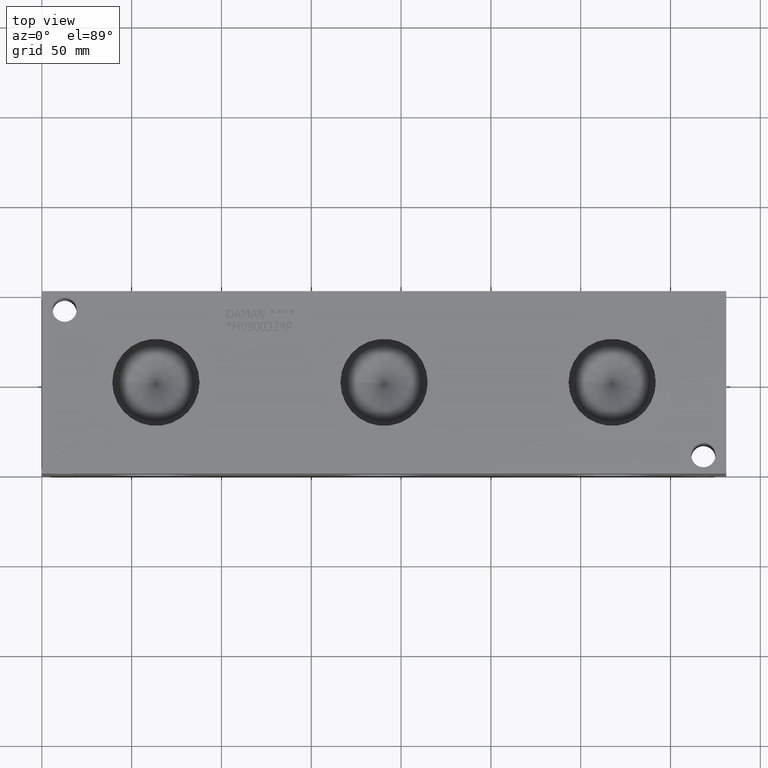
[diagram: clean part render]
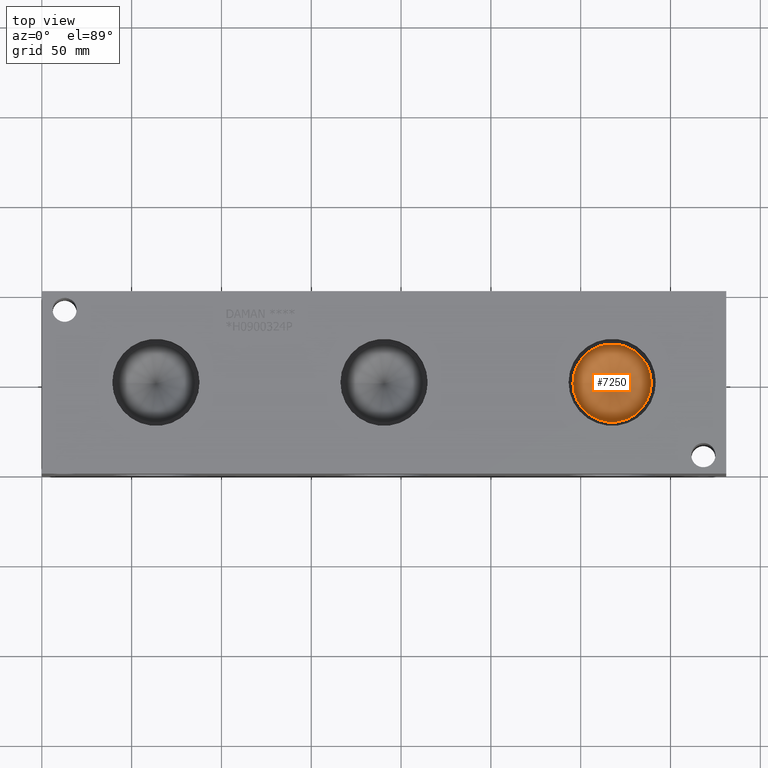
[diagram: same view with one face highlighted and labeled with its STEP entity id]
A machine part, top view. The second image highlights one B-rep face of the part: STEP entity #7250.
In plain terms, the highlighted conical surface has half-angle 60 deg.
Its self-contained STEP definition (entity closure, byte-faithful):
#51=CONICAL_SURFACE('',#7586,10.9093,1.0471975511966);
#103=CIRCLE('',#7587,21.8186);
#104=CIRCLE('',#7588,21.8186);
#755=FACE_OUTER_BOUND('',#1159,.T.);
#1159=EDGE_LOOP('',(#6394,#6395,#6396,#6397));
#1892=LINE('',#12298,#2610);
#2610=VECTOR('',#8938,10.9093);
#3475=VERTEX_POINT('',#12294);
#3476=VERTEX_POINT('',#12295);
#3477=VERTEX_POINT('',#12297);
#4461=EDGE_CURVE('',#3475,#3476,#103,.T.);
#4462=EDGE_CURVE('',#3476,#3477,#1892,.T.);
#4463=EDGE_CURVE('',#3476,#3475,#104,.T.);
#6394=ORIENTED_EDGE('',*,*,#4461,.T.);
#6395=ORIENTED_EDGE('',*,*,#4462,.T.);
#6396=ORIENTED_EDGE('',*,*,#4462,.F.);
#6397=ORIENTED_EDGE('',*,*,#4463,.T.);
#7250=ADVANCED_FACE('',(#755),#51,.F.);
#7586=AXIS2_PLACEMENT_3D('',#12293,#8934,#8935);
#7587=AXIS2_PLACEMENT_3D('',#12296,#8936,#8937);
#7588=AXIS2_PLACEMENT_3D('',#12299,#8939,#8940);
#8934=DIRECTION('center_axis',(0.,0.,1.));
#8935=DIRECTION('ref_axis',(1.,0.,0.));
#8936=DIRECTION('center_axis',(0.,0.,1.));
#8937=DIRECTION('ref_axis',(1.,0.,0.));
#8938=DIRECTION('',(0.866025403784438,1.06057523872491E-16,-0.5));
#8939=DIRECTION('center_axis',(0.,0.,1.));
#8940=DIRECTION('ref_axis',(1.,0.,0.));
#12293=CARTESIAN_POINT('Origin',(317.5,50.8,74.5346127083296));
#12294=CARTESIAN_POINT('',(339.3186,50.8,80.8331));
#12295=CARTESIAN_POINT('',(295.6814,50.8,80.8331));
#12296=CARTESIAN_POINT('Origin',(317.5,50.8,80.8331));
#12297=CARTESIAN_POINT('',(317.5,50.8,68.2361254166592));
#12298=CARTESIAN_POINT('',(306.5907,50.8,74.5346127083296));
#12299=CARTESIAN_POINT('Origin',(317.5,50.8,80.8331));